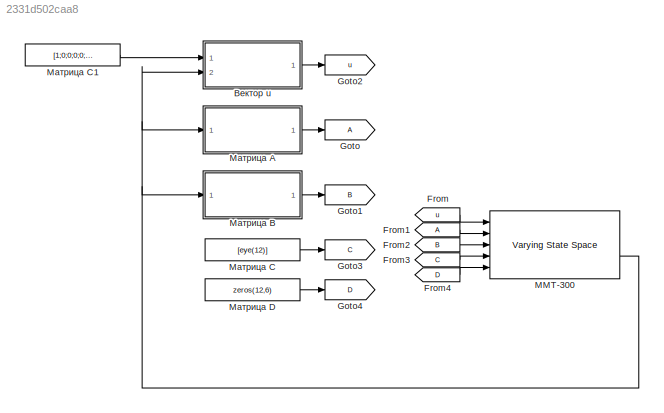
MODEL slx_2331d502caa8
KIND model
CONFIG AbsTol = auto
CONFIG EnableMultiTasking = off
CONFIG FixedStep = auto
CONFIG MaxStep = auto
CONFIG MinStep = auto
CONFIG RelTol = 1e-3
CONFIG SampleTimeConstraint = Unconstrained
CONFIG SolverName = VariableStepAuto
CONFIG StartTime = 0.0
CONFIG StopTime = 10.0
BLOCK [From] From
  GotoTag = u
BLOCK [From] From1
BLOCK [From] From2
  GotoTag = B
BLOCK [From] From3
  GotoTag = C
BLOCK [From] From4
  GotoTag = D
BLOCK [Goto] Goto
BLOCK [Goto] Goto1
  GotoTag = B
BLOCK [Goto] Goto2
  GotoTag = u
BLOCK [Goto] Goto3
  GotoTag = C
BLOCK [Goto] Goto4
  GotoTag = D
BLOCK [Reference] MMT-300  REF=cstblocks/Linear Parameter Varying/Varying State Space
  Ports = [5, 2]
  SourceBlock = cstblocks/Linear Parameter Varying/Varying State Space
  SourceProductBaseCode = CT
  SourceType = Varying State Space
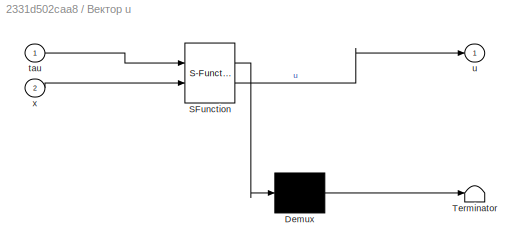
BLOCK [SubSystem] Вектор u
  ErrorFcn = Stateflow.Translate.translate
  PermitHierarchicalResolution = ExplicitOnly
  Ports = [2, 1]
  RequestExecContextInheritance = off
  SFBlockType = MATLAB Function
  TreatAsAtomicUnit = on
BLOCK [Demux] Вектор u/ Demux 
  Outputs = 1
  Ports = [1, 1]
BLOCK [S-Function] Вектор u/ SFunction 
  EnableBusSupport = on
  FunctionName = sf_sfun
  Parameters = MMT300
  PortCounts = [2 2]
  Ports = [2, 2]
  SFcnIsStateOwnerBlock = off
  SFunctionDeploymentMode = off
  Tag = Stateflow S-Function 5
BLOCK [Terminator] Вектор u/ Terminator 
BLOCK [Inport] Вектор u/tau
BLOCK [Outport] Вектор u/u
BLOCK [Inport] Вектор u/x
  Port = 2
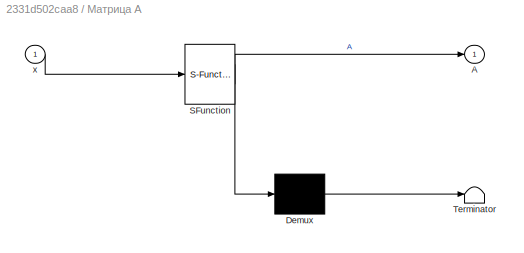
BLOCK [SubSystem] Матрица A
  ErrorFcn = Stateflow.Translate.translate
  PermitHierarchicalResolution = ExplicitOnly
  Ports = [1, 1]
  RequestExecContextInheritance = off
  SFBlockType = MATLAB Function
  TreatAsAtomicUnit = on
BLOCK [Demux] Матрица A/ Demux 
  Outputs = 1
  Ports = [1, 1]
BLOCK [S-Function] Матрица A/ SFunction 
  EnableBusSupport = on
  FunctionName = sf_sfun
  Parameters = MMT300
  PortCounts = [1 2]
  Ports = [1, 2]
  SFcnIsStateOwnerBlock = off
  SFunctionDeploymentMode = off
  Tag = Stateflow S-Function 3
BLOCK [Terminator] Матрица A/ Terminator 
BLOCK [Outport] Матрица A/A
BLOCK [Inport] Матрица A/x
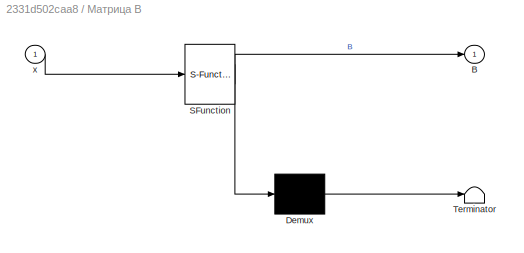
BLOCK [SubSystem] Матрица B
  ErrorFcn = Stateflow.Translate.translate
  PermitHierarchicalResolution = ExplicitOnly
  Ports = [1, 1]
  RequestExecContextInheritance = off
  SFBlockType = MATLAB Function
  TreatAsAtomicUnit = on
BLOCK [Demux] Матрица B/ Demux 
  Outputs = 1
  Ports = [1, 1]
BLOCK [S-Function] Матрица B/ SFunction 
  EnableBusSupport = on
  FunctionName = sf_sfun
  Parameters = MMT300
  PortCounts = [1 2]
  Ports = [1, 2]
  SFcnIsStateOwnerBlock = off
  SFunctionDeploymentMode = off
  Tag = Stateflow S-Function 4
BLOCK [Terminator] Матрица B/ Terminator 
BLOCK [Outport] Матрица B/B
BLOCK [Inport] Матрица B/x
BLOCK [Constant] Матрица C
  Value = [eye(12)]
BLOCK [Constant] Матрица C1
  Value = [1;0;0;0;0;0]
BLOCK [Constant] Матрица D
  Value = zeros(12,6)
LINE From1:1 -> MMT-300:2
LINE From2:1 -> MMT-300:3
LINE From3:1 -> MMT-300:4
LINE From4:1 -> MMT-300:5
LINE From:1 -> MMT-300:1
NET MMT-300:2 -> Вектор u:2, Матрица A:1, Матрица B:1
LINE Вектор u:1 -> Goto2:1
LINE Матрица A:1 -> Goto:1
LINE Матрица B:1 -> Goto1:1
LINE Матрица C1:1 -> Вектор u:1
LINE Матрица C:1 -> Goto3:1
LINE Матрица D:1 -> Goto4:1
note: NET lines group one-source signal fan-out (src -> all destinations, sorted); 1:1 wires keep LINE
CHART Матрица A states=1 transitions=1
  STATE_LABEL 'eML_blk_kernel()'
  STATE_LABEL 'SCRIPT:\nfunction A = Matrix_A(x, MMT300)\nn = 6;\neta = x(1:n); \nv = x(7:end);\nJ = MMT300.J(eta);\nM = MMT300.M;\nC = MMT300.C(MMT300,v);\n\nA = [ zeros(n), J^-1;\n      zeros(n), -M^-1 * ( C(v) ) ];'
CHART Матрица B states=1 transitions=1
  STATE_LABEL 'eML_blk_kernel()'
  STATE_LABEL 'SCRIPT:\nfunction B = Matrix_B(x, MMT300)\nn = 6;\nB = [zeros(n); MMT300.M^-1];'
CHART Вектор u states=1 transitions=1
  STATE_LABEL 'eML_blk_kernel()'
  STATE_LABEL 'SCRIPT:\nfunction u = Vector_u(tau, x, MMT300)\nn = 6;\neta = x(1:n); \n\nu = -MMT300.g(MMT300,eta) + tau;'
CHART  states=0 transitions=0
CHART  states=0 transitions=0
CHART  states=0 transitions=0
